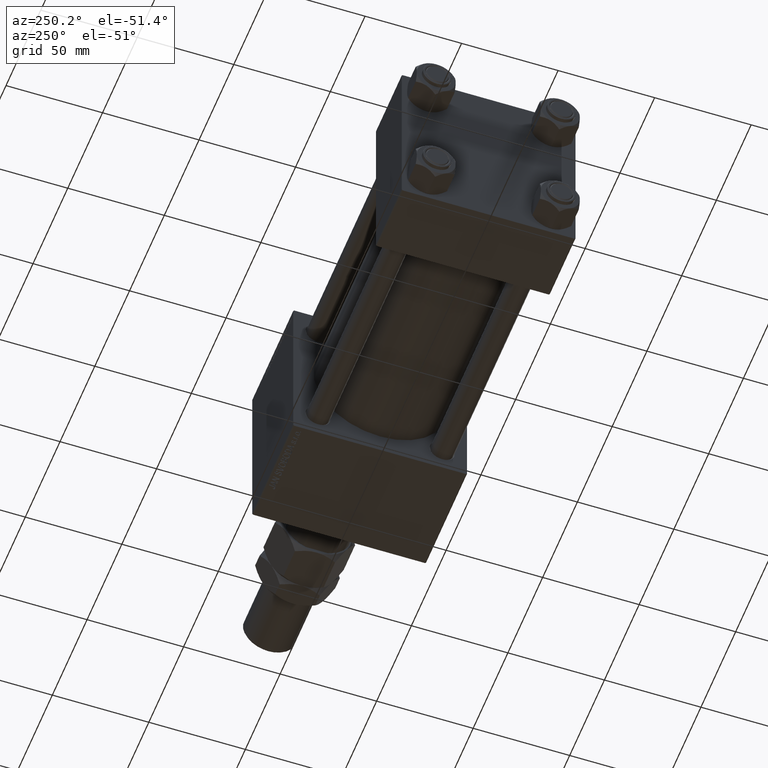
[diagram: clean part render]
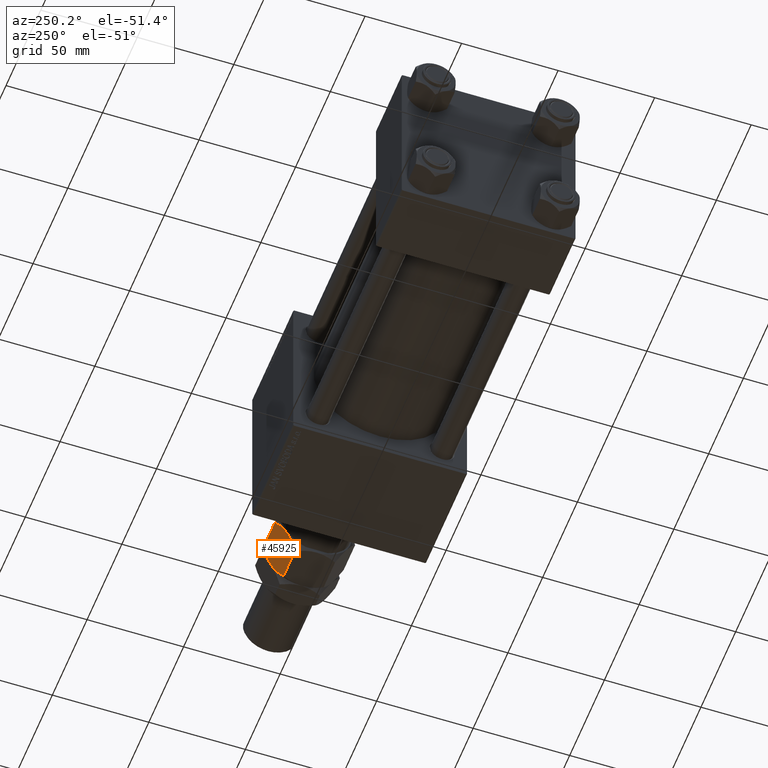
[diagram: same view with one face highlighted and labeled with its STEP entity id]
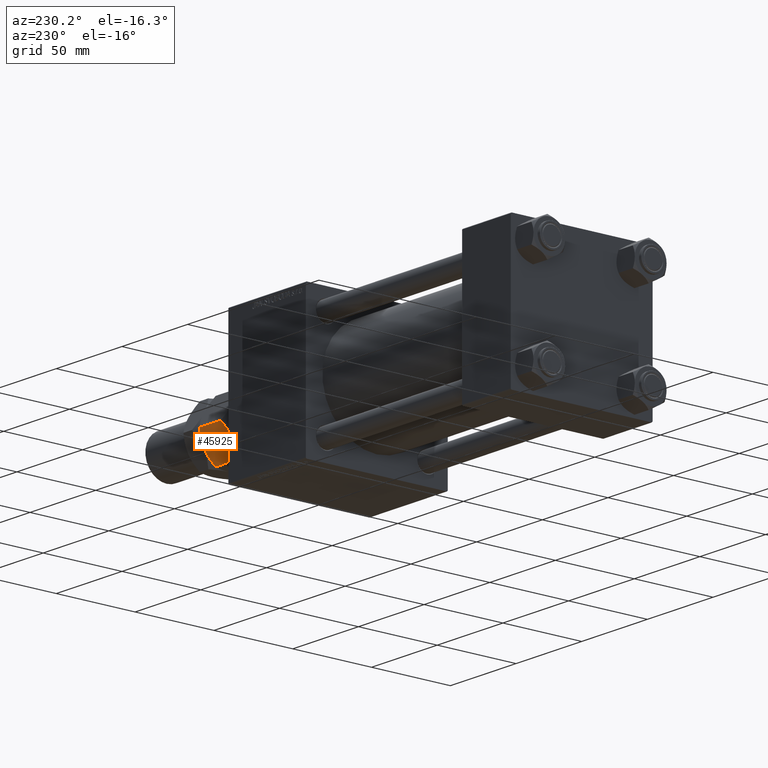
[diagram: same view with one face highlighted and labeled with its STEP entity id]
A machine part, auxiliary view. The second image highlights one B-rep face of the part: STEP entity #45925.
A second angle (auxiliary view) of the same face is appended — the face is thin or edge-on in the first view.
In plain terms, the highlighted planar face has unit normal (0, -0.866, 0.5).
Its self-contained STEP definition (entity closure, byte-faithful):
#146 = EDGE_CURVE ( 'NONE', #17059, #11712, #17461, .T. ) ;
#754 = AXIS2_PLACEMENT_3D ( 'NONE', #46519, #18202, #43363 ) ;
#919 = CARTESIAN_POINT ( 'NONE',  ( 15.13928418966203004, 12.04393988858690179, 1.272574701504239680 ) ) ;
#1625 = CARTESIAN_POINT ( 'NONE',  ( -2.339913671058857151E-16, 20.78460969082652454, 19.21539030917348256 ) ) ;
#3221 = CARTESIAN_POINT ( 'NONE',  ( 15.14539811114618573, 12.04041001437222214, 20.72261692211012729 ) ) ;
#5150 = B_SPLINE_CURVE_WITH_KNOTS ( 'NONE', 3,
 ( #6900, #7659, #3221, #35254, #27371, #7417, #23420, #30542, #39432, #42599 ),
 .UNSPECIFIED., .F., .F.,
 ( 4, 2, 2, 2, 4 ),
 ( 2.544307986796311447E-07, 0.005386537354063075135, 0.008079678815695273339, 0.009426249546511372007, 0.01077282027732746894 ),
 .UNSPECIFIED. ) ;
#5650 = DIRECTION ( 'NONE',  ( -0.000000000000000000, -0.000000000000000000, -1.000000000000000000 ) ) ;
#5665 = EDGE_CURVE ( 'NONE', #17059, #24614, #5150, .T. ) ;
#6631 = ORIENTED_EDGE ( 'NONE', *, *, #32782, .F. ) ;
#6655 = PLANE ( 'NONE',  #754 ) ;
#6900 = CARTESIAN_POINT ( 'NONE',  ( 18.00000000000000000, 10.39230484541326227, 19.21539030917347901 ) ) ;
#7417 = CARTESIAN_POINT ( 'NONE',  ( 10.97671975407794953, 14.44719758599053705, 21.86127740090141458 ) ) ;
#7659 = CARTESIAN_POINT ( 'NONE',  ( 16.58866960374795241, 11.20713682960488100, 20.03022229336509596 ) ) ;
#7718 = CARTESIAN_POINT ( 'NONE',  ( 1.409696000463982912, 19.97072132548310108, 20.02927867451694510 ) ) ;
#8021 = CARTESIAN_POINT ( 'NONE',  ( 8.999999999999998224, 15.58845726811989429, 0.000000000000000000 ) ) ;
#8024 = CARTESIAN_POINT ( 'NONE',  ( 5.097327296964719423, 17.84166640377631197, 0.5370855558290075216 ) ) ;
#8800 = CARTESIAN_POINT ( 'NONE',  ( 7.023280245922045140, 16.72971695024924443, 0.1387225990985735125 ) ) ;
#10619 = B_SPLINE_CURVE_WITH_KNOTS ( 'NONE', 3,
 ( #8021, #20862, #36890, #919, #41072, #28226 ),
 .UNSPECIFIED., .F., .F.,
 ( 4, 2, 4 ),
 ( 0.01077282027732746894, 0.01612137750481873466, 0.02146993473231000038 ),
 .UNSPECIFIED. ) ;
#10777 = CARTESIAN_POINT ( 'NONE',  ( 18.00000000000000000, 10.39230484541326227, 19.21539030917347901 ) ) ;
#11521 = EDGE_CURVE ( 'NONE', #36285, #18510, #32349, .T. ) ;
#11655 = CARTESIAN_POINT ( 'NONE',  ( -2.339913671058857151E-16, 20.78460969082652454, 19.21539030917348256 ) ) ;
#11712 = VERTEX_POINT ( 'NONE', #14210 ) ;
#12390 = DIRECTION ( 'NONE',  ( -0.000000000000000000, -0.000000000000000000, -1.000000000000000000 ) ) ;
#12495 = CARTESIAN_POINT ( 'NONE',  ( 18.00000000000000000, 10.39230484541326227, 22.00000000000000000 ) ) ;
#13879 = VECTOR ( 'NONE', #12390, 1000.000000000000000 ) ;
#13948 = EDGE_CURVE ( 'NONE', #38007, #11712, #10619, .T. ) ;
#14210 = CARTESIAN_POINT ( 'NONE',  ( 18.00000000000000000, 10.39230484541326227, 2.784609690826518325 ) ) ;
#16669 = CARTESIAN_POINT ( 'NONE',  ( 8.999999999999998224, 15.58845726811989429, 0.000000000000000000 ) ) ;
#17059 = VERTEX_POINT ( 'NONE', #10777 ) ;
#17461 = LINE ( 'NONE', #12495, #18506 ) ;
#18202 = DIRECTION ( 'NONE',  ( -0.4999999999999999445, -0.8660254037844387076, 0.000000000000000000 ) ) ;
#18506 = VECTOR ( 'NONE', #5650, 1000.000000000000000 ) ;
#18510 = VERTEX_POINT ( 'NONE', #44512 ) ;
#20862 = CARTESIAN_POINT ( 'NONE',  ( 10.56546083169953754, 14.68463803553234825, -3.293264098924718535E-15 ) ) ;
#21120 = CARTESIAN_POINT ( 'NONE',  ( 2.854601888853809388, 19.13650452186755757, 1.277383077889868046 ) ) ;
#23226 = CARTESIAN_POINT ( 'NONE',  ( 7.434539168300457135, 16.49227650070744033, 22.00000000000000711 ) ) ;
#23420 = CARTESIAN_POINT ( 'NONE',  ( 10.58425150785354418, 14.67378923359658138, 21.91305310988184374 ) ) ;
#24032 = CARTESIAN_POINT ( 'NONE',  ( 1.411330396252046260, 19.96977770663490759, 1.969777706634896708 ) ) ;
#24614 = VERTEX_POINT ( 'NONE', #32346 ) ;
#25803 = B_SPLINE_CURVE_WITH_KNOTS ( 'NONE', 3,
 ( #31624, #23226, #51257, #31876, #7718, #11655 ),
 .UNSPECIFIED., .F., .F.,
 ( 4, 2, 4 ),
 ( 0.01077282027732746894, 0.01612137750481873466, 0.02146993473231000385 ),
 .UNSPECIFIED. ) ;
#26965 = CARTESIAN_POINT ( 'NONE',  ( 8.999999999999998224, 15.58845726811989429, 0.000000000000000000 ) ) ;
#27120 = FACE_OUTER_BOUND ( 'NONE', #47462, .T. ) ;
#27183 = EDGE_CURVE ( 'NONE', #18510, #38007, #35603, .T. ) ;
#27371 = CARTESIAN_POINT ( 'NONE',  ( 12.14199022028319774, 13.77442836864821629, 21.65943689774472602 ) ) ;
#28226 = CARTESIAN_POINT ( 'NONE',  ( 18.00000000000000000, 10.39230484541326227, 2.784609690826518325 ) ) ;
#28493 = CARTESIAN_POINT ( 'NONE',  ( 8.209538469370125213, 16.04483044561309768, 0.01733285647408576435 ) ) ;
#29355 = ORIENTED_EDGE ( 'NONE', *, *, #11521, .F. ) ;
#30542 = CARTESIAN_POINT ( 'NONE',  ( 9.790461530629873010, 15.13208409062669624, 21.98266714352591578 ) ) ;
#31624 = CARTESIAN_POINT ( 'NONE',  ( 9.000000000000000000, 15.58845726811989074, 22.00000000000000000 ) ) ;
#31876 = CARTESIAN_POINT ( 'NONE',  ( 2.860715810337963738, 19.13297464765287259, 20.72742529849575277 ) ) ;
#32346 = CARTESIAN_POINT ( 'NONE',  ( 9.000000000000000000, 15.58845726811989074, 22.00000000000000000 ) ) ;
#32349 = LINE ( 'NONE', #48318, #13879 ) ;
#32782 = EDGE_CURVE ( 'NONE', #24614, #36285, #25803, .T. ) ;
#35254 = CARTESIAN_POINT ( 'NONE',  ( 12.90267270303527525, 13.33524813246346952, 21.46291444417098759 ) ) ;
#35603 = B_SPLINE_CURVE_WITH_KNOTS ( 'NONE', 3,
 ( #40560, #24032, #21120, #8024, #48401, #8800, #43968, #28493, #44478, #16669 ),
 .UNSPECIFIED., .F., .F.,
 ( 4, 2, 2, 2, 4 ),
 ( 2.544307986815284985E-07, 0.005386537354063076002, 0.008079678815695275074, 0.009426249546511372007, 0.01077282027732746894 ),
 .UNSPECIFIED. ) ;
#36285 = VERTEX_POINT ( 'NONE', #1625 ) ;
#36890 = CARTESIAN_POINT ( 'NONE',  ( 12.10430252359947900, 13.79618737047370125, 0.2763959071215808527 ) ) ;
#38007 = VERTEX_POINT ( 'NONE', #26965 ) ;
#39432 = CARTESIAN_POINT ( 'NONE',  ( 9.394125676616230436, 15.36090870263096875, 22.00000000000000000 ) ) ;
#40560 = CARTESIAN_POINT ( 'NONE',  ( -1.065242688631141971E-15, 20.78460969082652454, 2.784609690826513440 ) ) ;
#41072 = CARTESIAN_POINT ( 'NONE',  ( 16.59030399953601531, 11.20619321075668218, 1.970721325483050235 ) ) ;
#42599 = CARTESIAN_POINT ( 'NONE',  ( 9.000000000000000000, 15.58845726811989074, 22.00000000000000000 ) ) ;
#43363 = DIRECTION ( 'NONE',  ( 0.8660254037844387076, -0.4999999999999999445, 0.000000000000000000 ) ) ;
#43968 = CARTESIAN_POINT ( 'NONE',  ( 7.415748492146453152, 16.50312530264320898, 0.08694689011815050217 ) ) ;
#44478 = CARTESIAN_POINT ( 'NONE',  ( 8.605874323383767788, 15.81600583360882162, -3.502481236896532691E-15 ) ) ;
#44512 = CARTESIAN_POINT ( 'NONE',  ( -1.065242688631141971E-15, 20.78460969082652454, 2.784609690826513440 ) ) ;
#45917 = ORIENTED_EDGE ( 'NONE', *, *, #146, .T. ) ;
#45925 = ADVANCED_FACE ( 'NONE', ( #27120 ), #6655, .F. ) ;
#46251 = ORIENTED_EDGE ( 'NONE', *, *, #13948, .F. ) ;
#46519 = CARTESIAN_POINT ( 'NONE',  ( 18.00000000000000000, 10.39230484541326227, 22.00000000000000000 ) ) ;
#47257 = ORIENTED_EDGE ( 'NONE', *, *, #27183, .F. ) ;
#47462 = EDGE_LOOP ( 'NONE', ( #47257, #29355, #6631, #49835, #45917, #46251 ) ) ;
#48318 = CARTESIAN_POINT ( 'NONE',  ( 0.000000000000000000, 20.78460969082652454, 22.00000000000000000 ) ) ;
#48401 = CARTESIAN_POINT ( 'NONE',  ( 5.858009779716799592, 17.40248616759157230, 0.3405631022552657039 ) ) ;
#49835 = ORIENTED_EDGE ( 'NONE', *, *, #5665, .F. ) ;
#51257 = CARTESIAN_POINT ( 'NONE',  ( 5.895697476400520110, 17.38072716576608201, 21.72360409287842131 ) ) ;